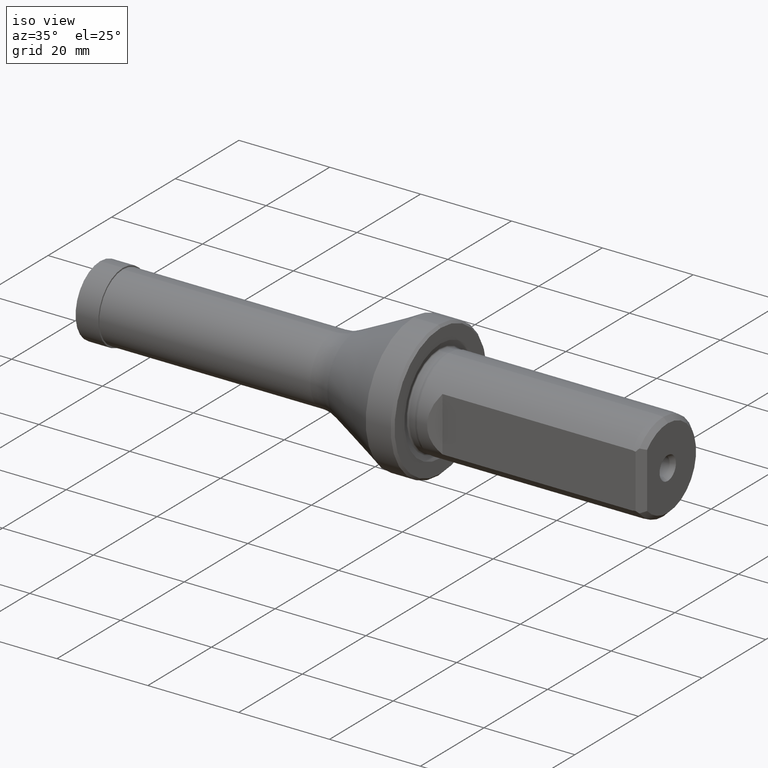
[diagram: clean part render]
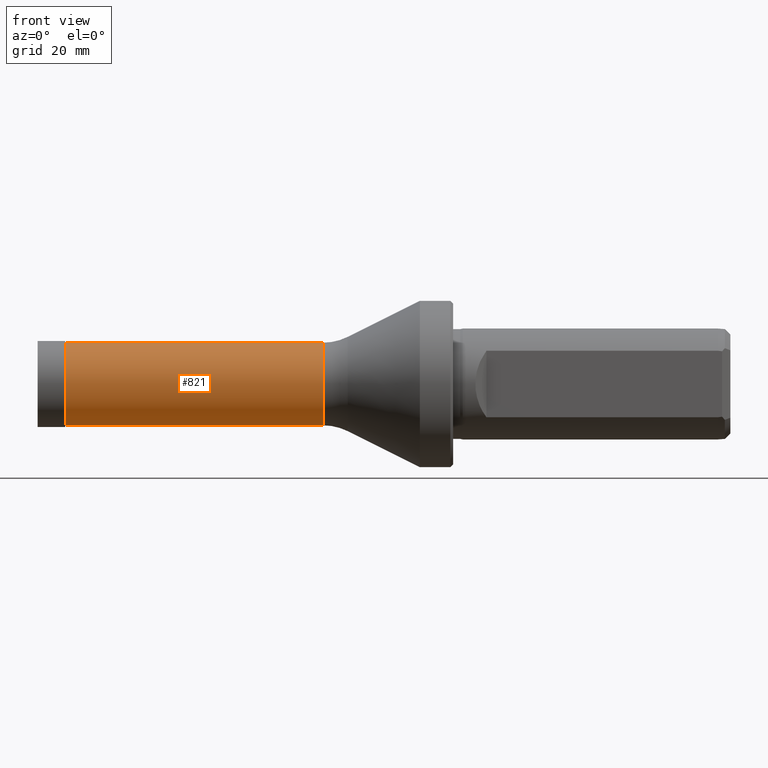
[diagram: tour spotlight — one face highlighted and labeled with its STEP entity id]
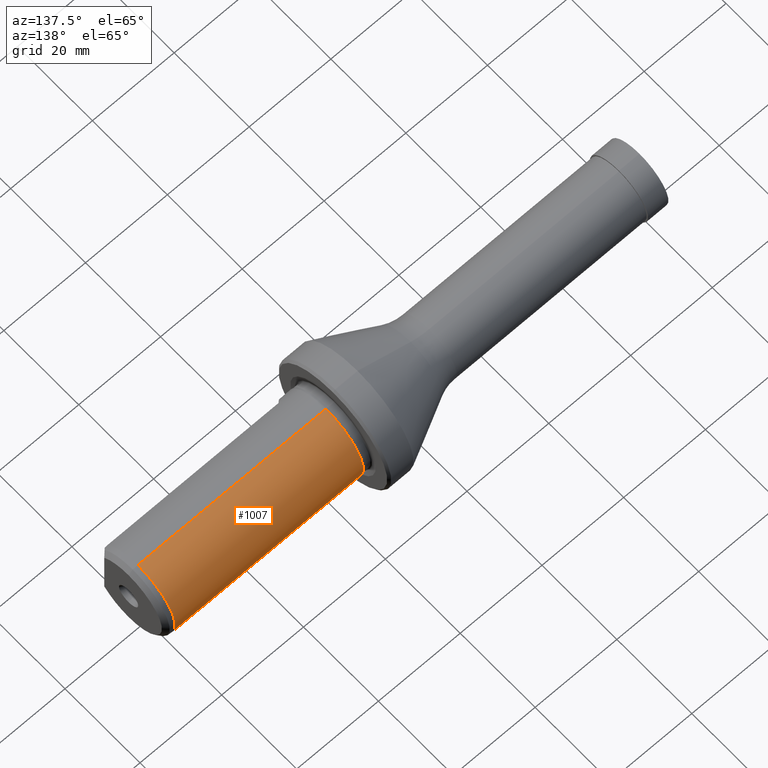
[diagram: tour spotlight — one face highlighted and labeled with its STEP entity id]
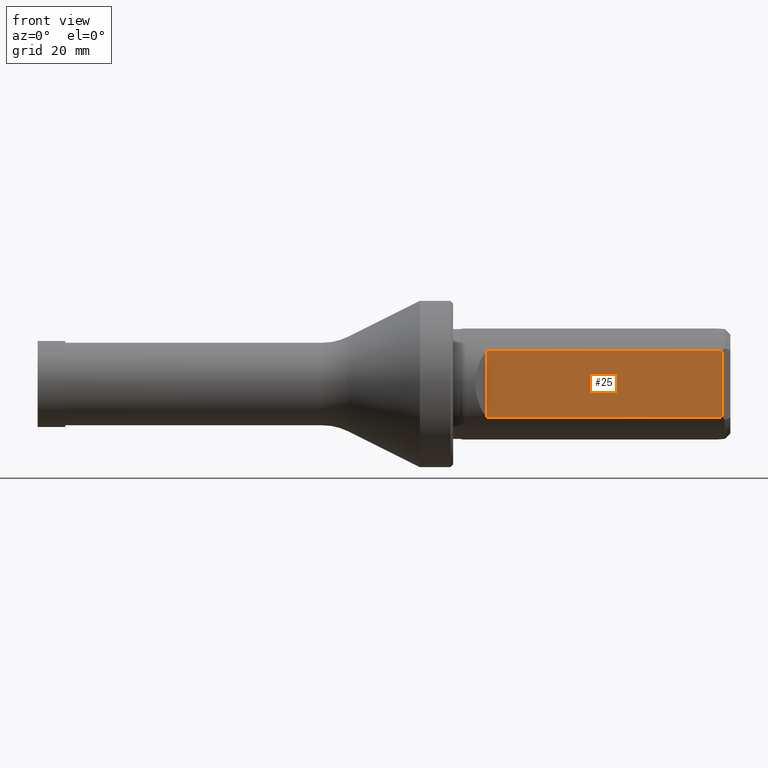
[diagram: tour spotlight — one face highlighted and labeled with its STEP entity id]
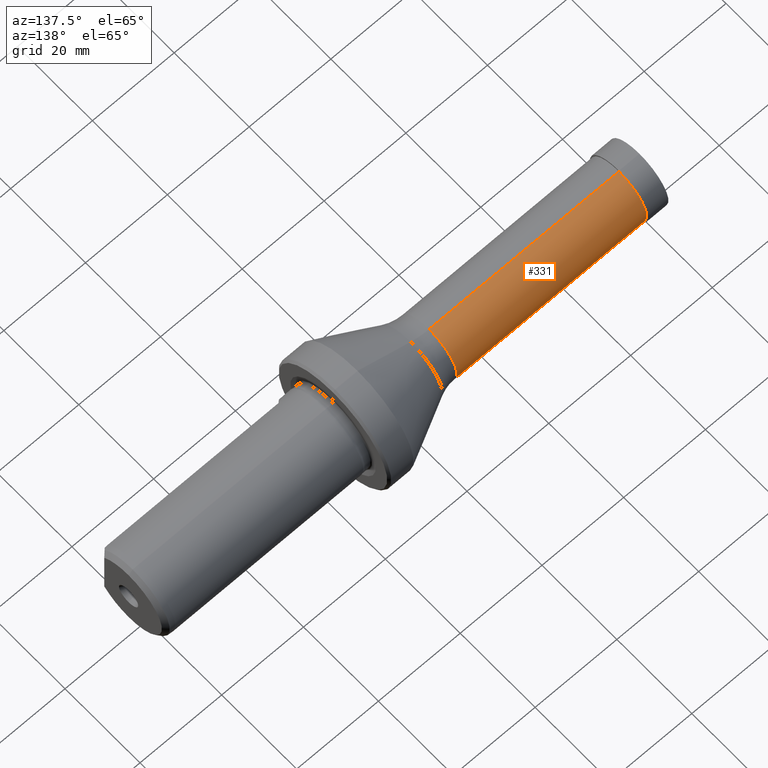
[diagram: tour spotlight — one face highlighted and labeled with its STEP entity id]
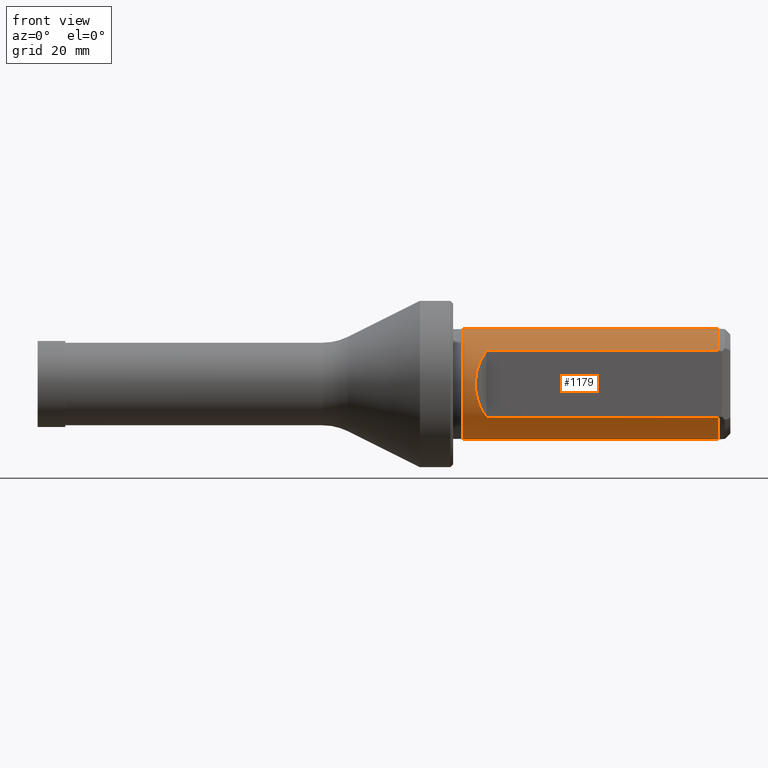
[diagram: tour spotlight — one face highlighted and labeled with its STEP entity id]
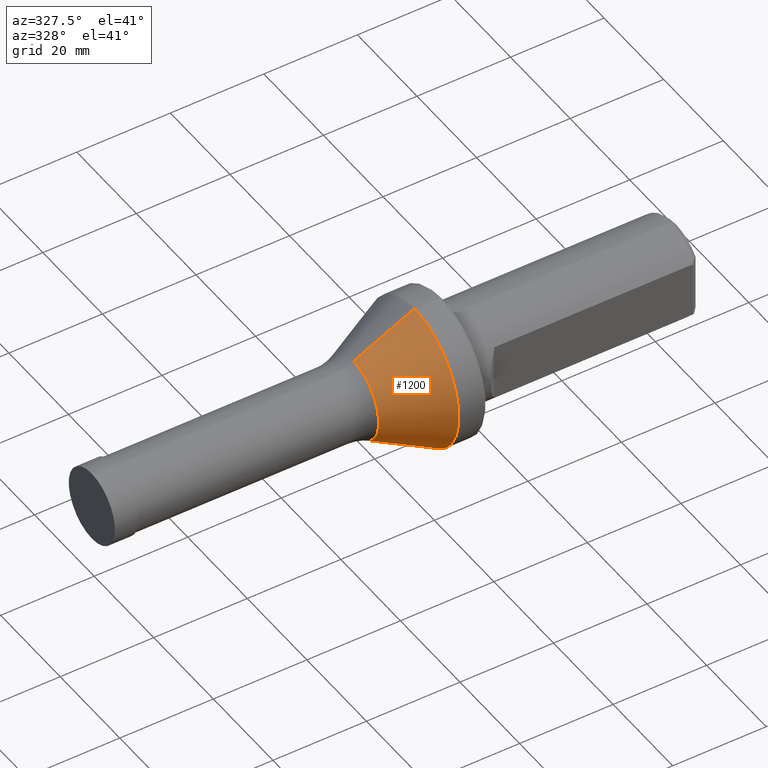
[diagram: tour spotlight — one face highlighted and labeled with its STEP entity id]
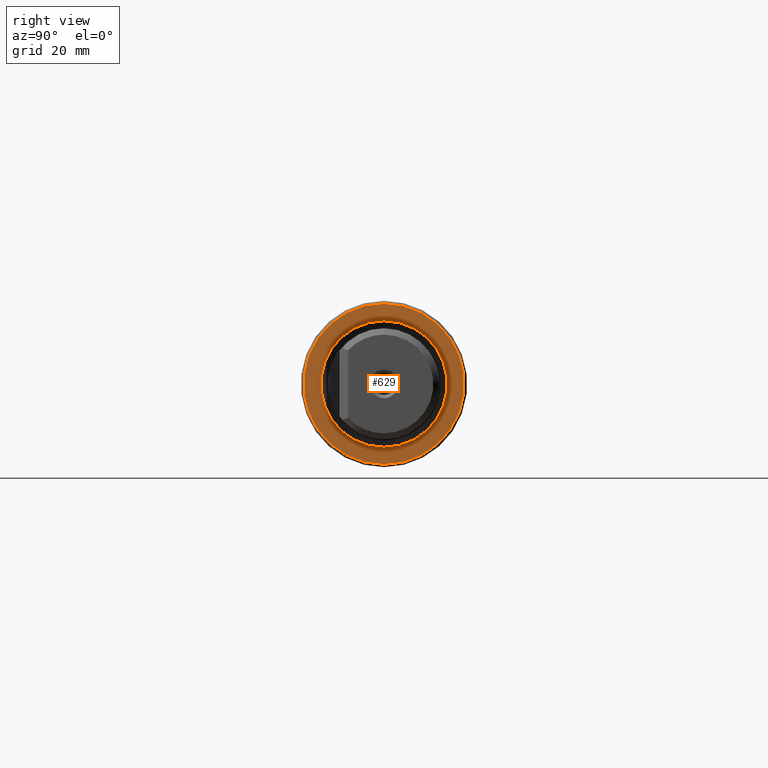
[diagram: tour spotlight — one face highlighted and labeled with its STEP entity id]
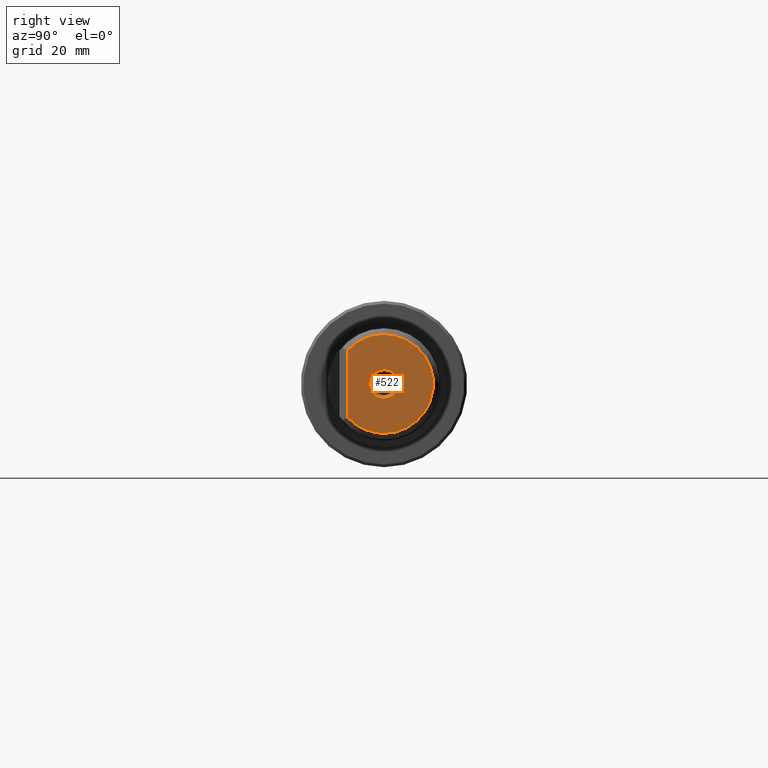
[diagram: tour spotlight — one face highlighted and labeled with its STEP entity id]
A machine part: a face-by-face anatomy tour. The part has 45 B-rep faces; the first image is the clean iso view, then the 8 largest visible faces are spotlighted one at a time (largest first), each with its STEP entity span.

Face 1 — front view, entity #821. In plain terms, the highlighted cylindrical surface (partial cylindrical patch) has radius 7.45 mm, axis along (-1, -0, -0).
Definition (entity closure, byte-faithful):
#3 = LINE ( 'NONE', #487, #10 ) ;
#10 = VECTOR ( 'NONE', #1047, 1000.000000000000000 ) ;
#26 = VERTEX_POINT ( 'NONE', #283 ) ;
#69 = CARTESIAN_POINT ( 'NONE',  ( 50.96900000000000100, 0.0000000000000000000, 0.0000000000000000000 ) ) ;
#119 = CARTESIAN_POINT ( 'NONE',  ( 0.0000000000000000000, 0.0000000000000000000, 0.0000000000000000000 ) ) ;
#147 = VERTEX_POINT ( 'NONE', #210 ) ;
#162 = DIRECTION ( 'NONE',  ( 0.0000000000000000000, 0.0000000000000000000, 1.000000000000000000 ) ) ;
#208 = AXIS2_PLACEMENT_3D ( 'NONE', #119, #484, #673 ) ;
#210 = CARTESIAN_POINT ( 'NONE',  ( 4.500000000000000000, 0.0000000000000000000, 7.450000000000000200 ) ) ;
#262 = VERTEX_POINT ( 'NONE', #499 ) ;
#274 = EDGE_LOOP ( 'NONE', ( #276, #825, #582, #443 ) ) ;
#276 = ORIENTED_EDGE ( 'NONE', *, *, #877, .F. ) ;
#283 = CARTESIAN_POINT ( 'NONE',  ( 50.96900000000000100, 0.0000000000000000000, 7.450000000000000200 ) ) ;
#351 = LINE ( 'NONE', #1051, #790 ) ;
#360 = AXIS2_PLACEMENT_3D ( 'NONE', #69, #721, #162 ) ;
#398 = CARTESIAN_POINT ( 'NONE',  ( 50.96900000000000100, 9.123618653647781200E-016, -7.450000000000000200 ) ) ;
#443 = ORIENTED_EDGE ( 'NONE', *, *, #694, .F. ) ;
#484 = DIRECTION ( 'NONE',  ( -1.000000000000000000, -0.0000000000000000000, -0.0000000000000000000 ) ) ;
#487 = CARTESIAN_POINT ( 'NONE',  ( 0.0000000000000000000, 0.0000000000000000000, 7.450000000000000200 ) ) ;
#493 = EDGE_CURVE ( 'NONE', #1136, #26, #1068, .T. ) ;
#499 = CARTESIAN_POINT ( 'NONE',  ( 4.500000000000000000, 9.123618653647781200E-016, -7.450000000000000200 ) ) ;
#538 = AXIS2_PLACEMENT_3D ( 'NONE', #682, #778, #867 ) ;
#582 = ORIENTED_EDGE ( 'NONE', *, *, #757, .T. ) ;
#673 = DIRECTION ( 'NONE',  ( 0.0000000000000000000, 0.0000000000000000000, 1.000000000000000000 ) ) ;
#682 = CARTESIAN_POINT ( 'NONE',  ( 4.500000000000000000, 0.0000000000000000000, 0.0000000000000000000 ) ) ;
#694 = EDGE_CURVE ( 'NONE', #262, #147, #968, .T. ) ;
#721 = DIRECTION ( 'NONE',  ( -1.000000000000000000, -0.0000000000000000000, -0.0000000000000000000 ) ) ;
#757 = EDGE_CURVE ( 'NONE', #26, #147, #3, .T. ) ;
#778 = DIRECTION ( 'NONE',  ( -1.000000000000000000, 0.0000000000000000000, 0.0000000000000000000 ) ) ;
#790 = VECTOR ( 'NONE', #1044, 1000.000000000000000 ) ;
#792 = CYLINDRICAL_SURFACE ( 'NONE', #208, 7.450000000000000200 ) ;
#821 = ADVANCED_FACE ( 'NONE', ( #906 ), #792, .T. ) ;
#825 = ORIENTED_EDGE ( 'NONE', *, *, #493, .T. ) ;
#867 = DIRECTION ( 'NONE',  ( 0.0000000000000000000, 0.0000000000000000000, 1.000000000000000000 ) ) ;
#877 = EDGE_CURVE ( 'NONE', #1136, #262, #351, .T. ) ;
#906 = FACE_OUTER_BOUND ( 'NONE', #274, .T. ) ;
#968 = CIRCLE ( 'NONE', #538, 7.450000000000000200 ) ;
#1044 = DIRECTION ( 'NONE',  ( -1.000000000000000000, -0.0000000000000000000, -0.0000000000000000000 ) ) ;
#1047 = DIRECTION ( 'NONE',  ( -1.000000000000000000, -0.0000000000000000000, -0.0000000000000000000 ) ) ;
#1051 = CARTESIAN_POINT ( 'NONE',  ( 0.0000000000000000000, 9.123618653647781200E-016, -7.450000000000000200 ) ) ;
#1068 = CIRCLE ( 'NONE', #360, 7.450000000000000200 ) ;
#1136 = VERTEX_POINT ( 'NONE', #398 ) ;

Face 2 — auxiliary view, entity #1007. In plain terms, the highlighted cylindrical surface (partial cylindrical patch) has radius 10 mm, axis along (-1, -0, -0).
Definition (entity closure, byte-faithful):
#17 = CARTESIAN_POINT ( 'NONE',  ( -0.5000000000000005600, 0.0000000000000000000, 10.00000000000000000 ) ) ;
#24 = CARTESIAN_POINT ( 'NONE',  ( -0.5000000000000005600, 1.224646799147353300E-015, -10.00000000000000000 ) ) ;
#54 = CARTESIAN_POINT ( 'NONE',  ( 122.2000000000001700, 0.0000000000000000000, 0.0000000000000000000 ) ) ;
#78 = EDGE_LOOP ( 'NONE', ( #914, #105, #206, #644 ) ) ;
#83 = DIRECTION ( 'NONE',  ( 1.000000000000000000, -0.0000000000000000000, -0.0000000000000000000 ) ) ;
#105 = ORIENTED_EDGE ( 'NONE', *, *, #799, .T. ) ;
#153 = DIRECTION ( 'NONE',  ( 0.0000000000000000000, 0.0000000000000000000, 1.000000000000000000 ) ) ;
#160 = CYLINDRICAL_SURFACE ( 'NONE', #1228, 10.00000000000000000 ) ;
#206 = ORIENTED_EDGE ( 'NONE', *, *, #733, .T. ) ;
#273 = CARTESIAN_POINT ( 'NONE',  ( 76.17953698905211000, 1.224646799147353500E-015, 10.00000000000000000 ) ) ;
#314 = DIRECTION ( 'NONE',  ( 0.0000000000000000000, 0.0000000000000000000, -1.000000000000000000 ) ) ;
#334 = EDGE_CURVE ( 'NONE', #919, #776, #1170, .T. ) ;
#382 = DIRECTION ( 'NONE',  ( -1.000000000000000000, -0.0000000000000000000, -0.0000000000000000000 ) ) ;
#462 = VERTEX_POINT ( 'NONE', #851 ) ;
#510 = VECTOR ( 'NONE', #382, 1000.000000000000000 ) ;
#575 = DIRECTION ( 'NONE',  ( -1.000000000000000000, -0.0000000000000000000, -0.0000000000000000000 ) ) ;
#644 = ORIENTED_EDGE ( 'NONE', *, *, #850, .F. ) ;
#687 = CARTESIAN_POINT ( 'NONE',  ( 76.17953698905211000, 0.0000000000000000000, 0.0000000000000000000 ) ) ;
#705 = DIRECTION ( 'NONE',  ( -1.000000000000000000, -0.0000000000000000000, -0.0000000000000000000 ) ) ;
#733 = EDGE_CURVE ( 'NONE', #462, #971, #1199, .T. ) ;
#734 = LINE ( 'NONE', #24, #1098 ) ;
#776 = VERTEX_POINT ( 'NONE', #910 ) ;
#799 = EDGE_CURVE ( 'NONE', #776, #462, #734, .T. ) ;
#850 = EDGE_CURVE ( 'NONE', #919, #971, #1183, .T. ) ;
#851 = CARTESIAN_POINT ( 'NONE',  ( 76.17953698905211000, 0.0000000000000000000, -10.00000000000000000 ) ) ;
#854 = AXIS2_PLACEMENT_3D ( 'NONE', #687, #83, #314 ) ;
#884 = AXIS2_PLACEMENT_3D ( 'NONE', #54, #705, #153 ) ;
#910 = CARTESIAN_POINT ( 'NONE',  ( 122.2000000000001700, 1.224646799147353300E-015, -10.00000000000000000 ) ) ;
#913 = DIRECTION ( 'NONE',  ( -1.000000000000000000, -0.0000000000000000000, -0.0000000000000000000 ) ) ;
#914 = ORIENTED_EDGE ( 'NONE', *, *, #334, .T. ) ;
#919 = VERTEX_POINT ( 'NONE', #1135 ) ;
#971 = VERTEX_POINT ( 'NONE', #273 ) ;
#1007 = ADVANCED_FACE ( 'NONE', ( #1113 ), #160, .T. ) ;
#1013 = CARTESIAN_POINT ( 'NONE',  ( -0.5000000000000005600, 0.0000000000000000000, 0.0000000000000000000 ) ) ;
#1017 = DIRECTION ( 'NONE',  ( 0.0000000000000000000, 0.0000000000000000000, 1.000000000000000000 ) ) ;
#1098 = VECTOR ( 'NONE', #575, 1000.000000000000000 ) ;
#1113 = FACE_OUTER_BOUND ( 'NONE', #78, .T. ) ;
#1135 = CARTESIAN_POINT ( 'NONE',  ( 122.2000000000001700, 0.0000000000000000000, 10.00000000000000000 ) ) ;
#1170 = CIRCLE ( 'NONE', #884, 10.00000000000000000 ) ;
#1183 = LINE ( 'NONE', #17, #510 ) ;
#1199 = CIRCLE ( 'NONE', #854, 10.00000000000000000 ) ;
#1228 = AXIS2_PLACEMENT_3D ( 'NONE', #1013, #913, #1017 ) ;

Face 3 — front view, entity #25. In plain terms, the highlighted planar face has unit normal (0, 1, 0).
Definition (entity closure, byte-faithful):
#5 = EDGE_CURVE ( 'NONE', #172, #319, #145, .T. ) ;
#9 = CARTESIAN_POINT ( 'NONE',  ( 122.9500000000000000, -7.999999999999998200, 5.899457602186859400 ) ) ;
#12 = EDGE_CURVE ( 'NONE', #172, #876, #1063, .T. ) ;
#16 = ORIENTED_EDGE ( 'NONE', *, *, #258, .T. ) ;
#25 = ADVANCED_FACE ( 'NONE', ( #741 ), #838, .F. ) ;
#27 = EDGE_CURVE ( 'NONE', #89, #252, #620, .T. ) ;
#89 = VERTEX_POINT ( 'NONE', #759 ) ;
#99 = LINE ( 'NONE', #1175, #1001 ) ;
#130 = CARTESIAN_POINT ( 'NONE',  ( 122.2000000000001300, -7.999999999999998200, 6.000000000000008900 ) ) ;
#135 = EDGE_CURVE ( 'NONE', #1229, #252, #455, .T. ) ;
#145 = B_SPLINE_CURVE_WITH_KNOTS ( 'NONE', 3,
 ( #1019, #452, #359, #1222 ),
 .UNSPECIFIED., .F., .F.,
 ( 4, 4 ),
 ( 0.01794528020322219700, 0.01870162634605468700 ),
 .UNSPECIFIED. ) ;
#149 = CARTESIAN_POINT ( 'NONE',  ( 122.1999999999806100, -7.999999999999998200, -6.000000000002611200 ) ) ;
#172 = VERTEX_POINT ( 'NONE', #587 ) ;
#177 = VECTOR ( 'NONE', #304, 1000.000000000000000 ) ;
#184 = DIRECTION ( 'NONE',  ( -0.0000000000000000000, -0.0000000000000000000, 1.000000000000000000 ) ) ;
#252 = VERTEX_POINT ( 'NONE', #692 ) ;
#258 = EDGE_CURVE ( 'NONE', #89, #319, #99, .T. ) ;
#275 = CARTESIAN_POINT ( 'NONE',  ( 122.9500000000000000, -7.999999999999998200, -13.99999999999999800 ) ) ;
#278 = ORIENTED_EDGE ( 'NONE', *, *, #27, .F. ) ;
#304 = DIRECTION ( 'NONE',  ( -1.000000000000000000, -0.0000000000000000000, -0.0000000000000000000 ) ) ;
#319 = VERTEX_POINT ( 'NONE', #149 ) ;
#359 = CARTESIAN_POINT ( 'NONE',  ( 122.4500230110917600, -7.999999999999998200, -5.966663598521133600 ) ) ;
#402 = VECTOR ( 'NONE', #1024, 1000.000000000000000 ) ;
#409 = DIRECTION ( 'NONE',  ( 1.000000000000000000, 0.0000000000000000000, 0.0000000000000000000 ) ) ;
#438 = CARTESIAN_POINT ( 'NONE',  ( 122.7000293310093200, -7.999999999999998200, 5.933151661774252800 ) ) ;
#452 = CARTESIAN_POINT ( 'NONE',  ( 122.7000244501772700, -7.999999999999998200, -5.933152319671628500 ) ) ;
#455 = LINE ( 'NONE', #770, #177 ) ;
#460 = CARTESIAN_POINT ( 'NONE',  ( 80.45000000000000300, -7.999999999999989300, -13.99999999999999800 ) ) ;
#534 = CARTESIAN_POINT ( 'NONE',  ( 122.4500258343678500, -7.999999999999998200, 5.966663222084313200 ) ) ;
#555 = DIRECTION ( 'NONE',  ( -1.000000000000000000, 2.040851148208008500E-016, 0.0000000000000000000 ) ) ;
#587 = CARTESIAN_POINT ( 'NONE',  ( 122.9500000000000000, -7.999999999999998200, -5.899457602186861200 ) ) ;
#620 = LINE ( 'NONE', #460, #1072 ) ;
#663 = AXIS2_PLACEMENT_3D ( 'NONE', #746, #1134, #555 ) ;
#675 = B_SPLINE_CURVE_WITH_KNOTS ( 'NONE', 3,
 ( #1120, #534, #438, #1011 ),
 .UNSPECIFIED., .F., .F.,
 ( 4, 4 ),
 ( 0.01829642709403096400, 0.01905308713919414200 ),
 .UNSPECIFIED. ) ;
#692 = CARTESIAN_POINT ( 'NONE',  ( 80.45000000000000300, -7.999999999999989300, 6.000000000000032900 ) ) ;
#741 = FACE_OUTER_BOUND ( 'NONE', #952, .T. ) ;
#746 = CARTESIAN_POINT ( 'NONE',  ( 122.9500000000000000, -7.999999999999998200, -13.99999999999999800 ) ) ;
#759 = CARTESIAN_POINT ( 'NONE',  ( 80.45000000000000300, -7.999999999999989300, -6.000000000000043500 ) ) ;
#770 = CARTESIAN_POINT ( 'NONE',  ( -0.5000000000000022200, -7.999999999999968900, 6.000000000000040000 ) ) ;
#838 = PLANE ( 'NONE',  #663 ) ;
#842 = ORIENTED_EDGE ( 'NONE', *, *, #12, .T. ) ;
#873 = ORIENTED_EDGE ( 'NONE', *, *, #1021, .F. ) ;
#876 = VERTEX_POINT ( 'NONE', #9 ) ;
#952 = EDGE_LOOP ( 'NONE', ( #16, #1080, #842, #873, #1103, #278 ) ) ;
#1001 = VECTOR ( 'NONE', #409, 1000.000000000000000 ) ;
#1011 = CARTESIAN_POINT ( 'NONE',  ( 122.9500000000000000, -7.999999999999998200, 5.899457602186859400 ) ) ;
#1019 = CARTESIAN_POINT ( 'NONE',  ( 122.9500000000000000, -7.999999999999998200, -5.899457602186861200 ) ) ;
#1021 = EDGE_CURVE ( 'NONE', #1229, #876, #675, .T. ) ;
#1024 = DIRECTION ( 'NONE',  ( -0.0000000000000000000, -0.0000000000000000000, 1.000000000000000000 ) ) ;
#1063 = LINE ( 'NONE', #275, #402 ) ;
#1072 = VECTOR ( 'NONE', #184, 1000.000000000000000 ) ;
#1080 = ORIENTED_EDGE ( 'NONE', *, *, #5, .F. ) ;
#1103 = ORIENTED_EDGE ( 'NONE', *, *, #135, .T. ) ;
#1120 = CARTESIAN_POINT ( 'NONE',  ( 122.2000000000001300, -7.999999999999998200, 6.000000000000008900 ) ) ;
#1134 = DIRECTION ( 'NONE',  ( 2.040851148208008500E-016, 1.000000000000000000, 0.0000000000000000000 ) ) ;
#1175 = CARTESIAN_POINT ( 'NONE',  ( -0.5000000000000022200, -7.999999999999968900, -6.000000000000040000 ) ) ;
#1222 = CARTESIAN_POINT ( 'NONE',  ( 122.1999999999806100, -7.999999999999998200, -6.000000000002611200 ) ) ;
#1229 = VERTEX_POINT ( 'NONE', #130 ) ;

Face 4 — auxiliary view, entity #331. In plain terms, the highlighted cylindrical surface (partial cylindrical patch) has radius 7.45 mm, axis along (-1, -0, -0).
Definition (entity closure, byte-faithful):
#3 = LINE ( 'NONE', #487, #10 ) ;
#10 = VECTOR ( 'NONE', #1047, 1000.000000000000000 ) ;
#26 = VERTEX_POINT ( 'NONE', #283 ) ;
#116 = DIRECTION ( 'NONE',  ( 0.0000000000000000000, 0.0000000000000000000, 1.000000000000000000 ) ) ;
#146 = CARTESIAN_POINT ( 'NONE',  ( 0.0000000000000000000, 0.0000000000000000000, 0.0000000000000000000 ) ) ;
#147 = VERTEX_POINT ( 'NONE', #210 ) ;
#157 = AXIS2_PLACEMENT_3D ( 'NONE', #668, #764, #116 ) ;
#176 = DIRECTION ( 'NONE',  ( -1.000000000000000000, -0.0000000000000000000, -0.0000000000000000000 ) ) ;
#210 = CARTESIAN_POINT ( 'NONE',  ( 4.500000000000000000, 0.0000000000000000000, 7.450000000000000200 ) ) ;
#239 = CYLINDRICAL_SURFACE ( 'NONE', #954, 7.450000000000000200 ) ;
#262 = VERTEX_POINT ( 'NONE', #499 ) ;
#279 = DIRECTION ( 'NONE',  ( 0.0000000000000000000, 0.0000000000000000000, 1.000000000000000000 ) ) ;
#283 = CARTESIAN_POINT ( 'NONE',  ( 50.96900000000000100, 0.0000000000000000000, 7.450000000000000200 ) ) ;
#331 = ADVANCED_FACE ( 'NONE', ( #512 ), #239, .T. ) ;
#338 = EDGE_LOOP ( 'NONE', ( #1096, #743, #586, #386 ) ) ;
#351 = LINE ( 'NONE', #1051, #790 ) ;
#377 = CIRCLE ( 'NONE', #157, 7.450000000000000200 ) ;
#386 = ORIENTED_EDGE ( 'NONE', *, *, #757, .F. ) ;
#398 = CARTESIAN_POINT ( 'NONE',  ( 50.96900000000000100, 9.123618653647781200E-016, -7.450000000000000200 ) ) ;
#425 = DIRECTION ( 'NONE',  ( -1.000000000000000000, -0.0000000000000000000, -0.0000000000000000000 ) ) ;
#487 = CARTESIAN_POINT ( 'NONE',  ( 0.0000000000000000000, 0.0000000000000000000, 7.450000000000000200 ) ) ;
#499 = CARTESIAN_POINT ( 'NONE',  ( 4.500000000000000000, 9.123618653647781200E-016, -7.450000000000000200 ) ) ;
#512 = FACE_OUTER_BOUND ( 'NONE', #338, .T. ) ;
#586 = ORIENTED_EDGE ( 'NONE', *, *, #823, .F. ) ;
#650 = AXIS2_PLACEMENT_3D ( 'NONE', #930, #176, #279 ) ;
#668 = CARTESIAN_POINT ( 'NONE',  ( 4.500000000000000000, 0.0000000000000000000, 0.0000000000000000000 ) ) ;
#743 = ORIENTED_EDGE ( 'NONE', *, *, #877, .T. ) ;
#757 = EDGE_CURVE ( 'NONE', #26, #147, #3, .T. ) ;
#764 = DIRECTION ( 'NONE',  ( -1.000000000000000000, 0.0000000000000000000, 0.0000000000000000000 ) ) ;
#790 = VECTOR ( 'NONE', #1044, 1000.000000000000000 ) ;
#823 = EDGE_CURVE ( 'NONE', #147, #262, #377, .T. ) ;
#877 = EDGE_CURVE ( 'NONE', #1136, #262, #351, .T. ) ;
#880 = DIRECTION ( 'NONE',  ( 0.0000000000000000000, 0.0000000000000000000, 1.000000000000000000 ) ) ;
#930 = CARTESIAN_POINT ( 'NONE',  ( 50.96900000000000100, 0.0000000000000000000, 0.0000000000000000000 ) ) ;
#944 = EDGE_CURVE ( 'NONE', #26, #1136, #1150, .T. ) ;
#954 = AXIS2_PLACEMENT_3D ( 'NONE', #146, #425, #880 ) ;
#1044 = DIRECTION ( 'NONE',  ( -1.000000000000000000, -0.0000000000000000000, -0.0000000000000000000 ) ) ;
#1047 = DIRECTION ( 'NONE',  ( -1.000000000000000000, -0.0000000000000000000, -0.0000000000000000000 ) ) ;
#1051 = CARTESIAN_POINT ( 'NONE',  ( 0.0000000000000000000, 9.123618653647781200E-016, -7.450000000000000200 ) ) ;
#1096 = ORIENTED_EDGE ( 'NONE', *, *, #944, .T. ) ;
#1136 = VERTEX_POINT ( 'NONE', #398 ) ;
#1150 = CIRCLE ( 'NONE', #650, 7.450000000000000200 ) ;

Face 5 — front view, entity #1179. In plain terms, the highlighted cylindrical surface (partial cylindrical patch) has radius 10 mm, axis along (-1, -0, -0).
Definition (entity closure, byte-faithful):
#17 = CARTESIAN_POINT ( 'NONE',  ( -0.5000000000000005600, 0.0000000000000000000, 10.00000000000000000 ) ) ;
#21 = CARTESIAN_POINT ( 'NONE',  ( 76.17953698905211000, 0.0000000000000000000, 0.0000000000000000000 ) ) ;
#23 = AXIS2_PLACEMENT_3D ( 'NONE', #21, #570, #1147 ) ;
#24 = CARTESIAN_POINT ( 'NONE',  ( -0.5000000000000005600, 1.224646799147353300E-015, -10.00000000000000000 ) ) ;
#38 = CARTESIAN_POINT ( 'NONE',  ( -0.5000000000000005600, 0.0000000000000000000, 0.0000000000000000000 ) ) ;
#39 = CARTESIAN_POINT ( 'NONE',  ( 77.68076923076920100, -10.76923076923077700, -2.307692307692327500 ) ) ;
#58 = ORIENTED_EDGE ( 'NONE', *, *, #188, .F. ) ;
#89 = VERTEX_POINT ( 'NONE', #759 ) ;
#99 = LINE ( 'NONE', #1175, #1001 ) ;
#130 = CARTESIAN_POINT ( 'NONE',  ( 122.2000000000001300, -7.999999999999998200, 6.000000000000008900 ) ) ;
#133 = CARTESIAN_POINT ( 'NONE',  ( 80.45000000000000300, -7.999999999999989300, -6.000000000000043500 ) ) ;
#135 = EDGE_CURVE ( 'NONE', #1229, #252, #455, .T. ) ;
#149 = CARTESIAN_POINT ( 'NONE',  ( 122.1999999999806100, -7.999999999999998200, -6.000000000002611200 ) ) ;
#177 = VECTOR ( 'NONE', #304, 1000.000000000000000 ) ;
#188 = EDGE_CURVE ( 'NONE', #252, #89, #1148, .T. ) ;
#215 = ORIENTED_EDGE ( 'NONE', *, *, #850, .T. ) ;
#219 = ORIENTED_EDGE ( 'NONE', *, *, #815, .T. ) ;
#225 = ORIENTED_EDGE ( 'NONE', *, *, #316, .T. ) ;
#234 = DIRECTION ( 'NONE',  ( -1.000000000000000000, -0.0000000000000000000, -0.0000000000000000000 ) ) ;
#252 = VERTEX_POINT ( 'NONE', #692 ) ;
#258 = EDGE_CURVE ( 'NONE', #89, #319, #99, .T. ) ;
#273 = CARTESIAN_POINT ( 'NONE',  ( 76.17953698905211000, 1.224646799147353500E-015, 10.00000000000000000 ) ) ;
#282 = DIRECTION ( 'NONE',  ( 0.0000000000000000000, 0.0000000000000000000, 1.000000000000000000 ) ) ;
#295 = ORIENTED_EDGE ( 'NONE', *, *, #686, .T. ) ;
#304 = DIRECTION ( 'NONE',  ( -1.000000000000000000, -0.0000000000000000000, -0.0000000000000000000 ) ) ;
#316 = EDGE_CURVE ( 'NONE', #776, #319, #890, .T. ) ;
#319 = VERTEX_POINT ( 'NONE', #149 ) ;
#321 = ORIENTED_EDGE ( 'NONE', *, *, #135, .F. ) ;
#347 = ORIENTED_EDGE ( 'NONE', *, *, #799, .F. ) ;
#363 = ORIENTED_EDGE ( 'NONE', *, *, #258, .F. ) ;
#382 = DIRECTION ( 'NONE',  ( -1.000000000000000000, -0.0000000000000000000, -0.0000000000000000000 ) ) ;
#409 = DIRECTION ( 'NONE',  ( 1.000000000000000000, 0.0000000000000000000, 0.0000000000000000000 ) ) ;
#455 = LINE ( 'NONE', #770, #177 ) ;
#462 = VERTEX_POINT ( 'NONE', #851 ) ;
#481 = AXIS2_PLACEMENT_3D ( 'NONE', #502, #784, #282 ) ;
#502 = CARTESIAN_POINT ( 'NONE',  ( 122.2000000000001700, 0.0000000000000000000, 0.0000000000000000000 ) ) ;
#510 = VECTOR ( 'NONE', #382, 1000.000000000000000 ) ;
#564 = FACE_OUTER_BOUND ( 'NONE', #584, .T. ) ;
#570 = DIRECTION ( 'NONE',  ( 1.000000000000000000, -0.0000000000000000000, -0.0000000000000000000 ) ) ;
#575 = DIRECTION ( 'NONE',  ( -1.000000000000000000, -0.0000000000000000000, -0.0000000000000000000 ) ) ;
#584 = EDGE_LOOP ( 'NONE', ( #347, #225, #363, #58, #321, #295, #215, #219 ) ) ;
#647 = DIRECTION ( 'NONE',  ( 0.0000000000000000000, 0.0000000000000000000, 1.000000000000000000 ) ) ;
#684 = CARTESIAN_POINT ( 'NONE',  ( 77.68076923076920100, -10.76923076923077700, 2.307692307692321700 ) ) ;
#686 = EDGE_CURVE ( 'NONE', #1229, #919, #856, .T. ) ;
#689 = AXIS2_PLACEMENT_3D ( 'NONE', #38, #917, #647 ) ;
#692 = CARTESIAN_POINT ( 'NONE',  ( 80.45000000000000300, -7.999999999999989300, 6.000000000000032900 ) ) ;
#698 = CARTESIAN_POINT ( 'NONE',  ( 122.2000000000001700, 0.0000000000000000000, 0.0000000000000000000 ) ) ;
#734 = LINE ( 'NONE', #24, #1098 ) ;
#759 = CARTESIAN_POINT ( 'NONE',  ( 80.45000000000000300, -7.999999999999989300, -6.000000000000043500 ) ) ;
#766 = AXIS2_PLACEMENT_3D ( 'NONE', #698, #234, #882 ) ;
#770 = CARTESIAN_POINT ( 'NONE',  ( -0.5000000000000022200, -7.999999999999968900, 6.000000000000040000 ) ) ;
#776 = VERTEX_POINT ( 'NONE', #910 ) ;
#784 = DIRECTION ( 'NONE',  ( -1.000000000000000000, -0.0000000000000000000, -0.0000000000000000000 ) ) ;
#799 = EDGE_CURVE ( 'NONE', #776, #462, #734, .T. ) ;
#815 = EDGE_CURVE ( 'NONE', #971, #462, #1182, .T. ) ;
#850 = EDGE_CURVE ( 'NONE', #919, #971, #1183, .T. ) ;
#851 = CARTESIAN_POINT ( 'NONE',  ( 76.17953698905211000, 0.0000000000000000000, -10.00000000000000000 ) ) ;
#856 = CIRCLE ( 'NONE', #481, 10.00000000000000000 ) ;
#882 = DIRECTION ( 'NONE',  ( 0.0000000000000000000, 0.0000000000000000000, 1.000000000000000000 ) ) ;
#890 = CIRCLE ( 'NONE', #766, 10.00000000000000000 ) ;
#910 = CARTESIAN_POINT ( 'NONE',  ( 122.2000000000001700, 1.224646799147353300E-015, -10.00000000000000000 ) ) ;
#917 = DIRECTION ( 'NONE',  ( -1.000000000000000000, -0.0000000000000000000, -0.0000000000000000000 ) ) ;
#919 = VERTEX_POINT ( 'NONE', #1135 ) ;
#935 = CYLINDRICAL_SURFACE ( 'NONE', #689, 10.00000000000000000 ) ;
#971 = VERTEX_POINT ( 'NONE', #273 ) ;
#1001 = VECTOR ( 'NONE', #409, 1000.000000000000000 ) ;
#1067 = CARTESIAN_POINT ( 'NONE',  ( 80.45000000000000300, -7.999999999999989300, 6.000000000000032900 ) ) ;
#1098 = VECTOR ( 'NONE', #575, 1000.000000000000000 ) ;
#1135 = CARTESIAN_POINT ( 'NONE',  ( 122.2000000000001700, 0.0000000000000000000, 10.00000000000000000 ) ) ;
#1147 = DIRECTION ( 'NONE',  ( 0.0000000000000000000, 0.0000000000000000000, -1.000000000000000000 ) ) ;
#1148 =( BOUNDED_CURVE ( )  B_SPLINE_CURVE ( 3, ( #1067, #684, #39, #133 ),
 .UNSPECIFIED., .F., .F. ) 
 B_SPLINE_CURVE_WITH_KNOTS ( ( 4, 4 ),
 ( 5.639684198386298400, 6.926686415972874900 ),
 .UNSPECIFIED. ) 
 CURVE ( )  GEOMETRIC_REPRESENTATION_ITEM ( )  RATIONAL_B_SPLINE_CURVE ( ( 1.000000000000000000, 0.8666666666666650300, 0.8666666666666650300, 1.000000000000000000 ) ) 
 REPRESENTATION_ITEM ( '' )  );
#1175 = CARTESIAN_POINT ( 'NONE',  ( -0.5000000000000022200, -7.999999999999968900, -6.000000000000040000 ) ) ;
#1179 = ADVANCED_FACE ( 'NONE', ( #564 ), #935, .T. ) ;
#1182 = CIRCLE ( 'NONE', #23, 10.00000000000000000 ) ;
#1183 = LINE ( 'NONE', #17, #510 ) ;
#1229 = VERTEX_POINT ( 'NONE', #130 ) ;

Face 6 — auxiliary view, entity #1200. In plain terms, the highlighted conical surface has half-angle 26.529 deg.
Definition (entity closure, byte-faithful):
#45 = CARTESIAN_POINT ( 'NONE',  ( 68.45000000000000300, 1.836970198721029600E-015, 14.99999999999999800 ) ) ;
#47 = VERTEX_POINT ( 'NONE', #472 ) ;
#53 = CARTESIAN_POINT ( 'NONE',  ( 68.45000000000000300, 0.0000000000000000000, 0.0000000000000000000 ) ) ;
#67 = CARTESIAN_POINT ( 'NONE',  ( 68.45000000000000300, 0.0000000000000000000, -14.99999999999999800 ) ) ;
#95 = VECTOR ( 'NONE', #623, 1000.000000000000200 ) ;
#128 = EDGE_CURVE ( 'NONE', #47, #634, #723, .T. ) ;
#193 = DIRECTION ( 'NONE',  ( 0.0000000000000000000, 0.0000000000000000000, -1.000000000000000000 ) ) ;
#264 = ORIENTED_EDGE ( 'NONE', *, *, #669, .F. ) ;
#280 = ORIENTED_EDGE ( 'NONE', *, *, #128, .F. ) ;
#419 = AXIS2_PLACEMENT_3D ( 'NONE', #588, #1161, #492 ) ;
#427 = AXIS2_PLACEMENT_3D ( 'NONE', #53, #704, #1090 ) ;
#472 = CARTESIAN_POINT ( 'NONE',  ( 55.43554605212926100, 0.0000000000000000000, 8.502935321335346700 ) ) ;
#471 = VECTOR ( 'NONE', #959, 1000.000000000000200 ) ;
#492 = DIRECTION ( 'NONE',  ( 0.0000000000000000000, 0.0000000000000000000, 1.000000000000000000 ) ) ;
#500 = EDGE_CURVE ( 'NONE', #662, #634, #656, .T. ) ;
#561 = DIRECTION ( 'NONE',  ( 1.000000000000000000, 0.0000000000000000000, 0.0000000000000000000 ) ) ;
#588 = CARTESIAN_POINT ( 'NONE',  ( 55.43554605212926100, 0.0000000000000000000, 0.0000000000000000000 ) ) ;
#623 = DIRECTION ( 'NONE',  ( 0.8947064678664644600, 0.0000000000000000000, -0.4466546052129263800 ) ) ;
#634 = VERTEX_POINT ( 'NONE', #45 ) ;
#656 = CIRCLE ( 'NONE', #427, 14.99999999999999800 ) ;
#662 = VERTEX_POINT ( 'NONE', #691 ) ;
#664 = CARTESIAN_POINT ( 'NONE',  ( 68.45000000000000300, 0.0000000000000000000, 0.0000000000000000000 ) ) ;
#669 = EDGE_CURVE ( 'NONE', #1180, #47, #951, .T. ) ;
#691 = CARTESIAN_POINT ( 'NONE',  ( 68.45000000000000300, 0.0000000000000000000, -14.99999999999999800 ) ) ;
#700 = LINE ( 'NONE', #67, #95 ) ;
#704 = DIRECTION ( 'NONE',  ( -1.000000000000000000, -0.0000000000000000000, -0.0000000000000000000 ) ) ;
#723 = LINE ( 'NONE', #1061, #471 ) ;
#753 = AXIS2_PLACEMENT_3D ( 'NONE', #664, #561, #193 ) ;
#820 = ORIENTED_EDGE ( 'NONE', *, *, #500, .T. ) ;
#834 = FACE_OUTER_BOUND ( 'NONE', #888, .T. ) ;
#888 = EDGE_LOOP ( 'NONE', ( #280, #264, #901, #820 ) ) ;
#901 = ORIENTED_EDGE ( 'NONE', *, *, #1105, .T. ) ;
#951 = CIRCLE ( 'NONE', #419, 8.502935321335348500 ) ;
#959 = DIRECTION ( 'NONE',  ( 0.8947064678664644600, 5.469941325984350200E-017, 0.4466546052129263800 ) ) ;
#999 = CONICAL_SURFACE ( 'NONE', #753, 14.99999999999999800, 0.4630227364362859400 ) ;
#1053 = CARTESIAN_POINT ( 'NONE',  ( 55.43554605212926100, 1.041309252463030300E-015, -8.502935321335346700 ) ) ;
#1061 = CARTESIAN_POINT ( 'NONE',  ( 68.45000000000000300, 1.836970198721029600E-015, 14.99999999999999800 ) ) ;
#1090 = DIRECTION ( 'NONE',  ( 0.0000000000000000000, 0.0000000000000000000, 1.000000000000000000 ) ) ;
#1105 = EDGE_CURVE ( 'NONE', #1180, #662, #700, .T. ) ;
#1161 = DIRECTION ( 'NONE',  ( -1.000000000000000000, -0.0000000000000000000, -0.0000000000000000000 ) ) ;
#1180 = VERTEX_POINT ( 'NONE', #1053 ) ;
#1200 = ADVANCED_FACE ( 'NONE', ( #834 ), #999, .T. ) ;

Face 7 — right view, entity #629. In plain terms, the highlighted planar face has unit normal (-1, 0, -0).
Definition (entity closure, byte-faithful):
#93 = VERTEX_POINT ( 'NONE', #768 ) ;
#129 = CIRCLE ( 'NONE', #928, 11.40000000000001100 ) ;
#144 = PLANE ( 'NONE',  #285 ) ;
#158 = DIRECTION ( 'NONE',  ( 1.000000000000000000, 0.0000000000000000000, 0.0000000000000000000 ) ) ;
#169 = ORIENTED_EDGE ( 'NONE', *, *, #560, .F. ) ;
#173 = AXIS2_PLACEMENT_3D ( 'NONE', #341, #897, #245 ) ;
#183 = DIRECTION ( 'NONE',  ( 0.0000000000000000000, 0.0000000000000000000, 1.000000000000000000 ) ) ;
#196 = VERTEX_POINT ( 'NONE', #315 ) ;
#203 = FACE_BOUND ( 'NONE', #931, .T. ) ;
#220 = CIRCLE ( 'NONE', #519, 14.49999999999999600 ) ;
#236 = VERTEX_POINT ( 'NONE', #973 ) ;
#245 = DIRECTION ( 'NONE',  ( 0.0000000000000000000, 0.0000000000000000000, -1.000000000000000000 ) ) ;
#285 = AXIS2_PLACEMENT_3D ( 'NONE', #1079, #317, #875 ) ;
#286 = DIRECTION ( 'NONE',  ( 1.000000000000000000, 0.0000000000000000000, 0.0000000000000000000 ) ) ;
#309 = CIRCLE ( 'NONE', #173, 11.40000000000001100 ) ;
#315 = CARTESIAN_POINT ( 'NONE',  ( 74.45000000000000300, 0.0000000000000000000, 14.49999999999999600 ) ) ;
#317 = DIRECTION ( 'NONE',  ( -1.000000000000000000, 0.0000000000000000000, -0.0000000000000000000 ) ) ;
#318 = DIRECTION ( 'NONE',  ( 0.0000000000000000000, 0.0000000000000000000, -1.000000000000000000 ) ) ;
#340 = FACE_OUTER_BOUND ( 'NONE', #404, .T. ) ;
#341 = CARTESIAN_POINT ( 'NONE',  ( 74.45000000000000300, 0.0000000000000000000, 0.0000000000000000000 ) ) ;
#374 = EDGE_CURVE ( 'NONE', #196, #93, #615, .T. ) ;
#404 = EDGE_LOOP ( 'NONE', ( #595, #1101 ) ) ;
#416 = EDGE_CURVE ( 'NONE', #563, #236, #309, .T. ) ;
#519 = AXIS2_PLACEMENT_3D ( 'NONE', #934, #286, #183 ) ;
#560 = EDGE_CURVE ( 'NONE', #236, #563, #129, .T. ) ;
#563 = VERTEX_POINT ( 'NONE', #974 ) ;
#595 = ORIENTED_EDGE ( 'NONE', *, *, #374, .T. ) ;
#610 = CARTESIAN_POINT ( 'NONE',  ( 74.45000000000000300, 0.0000000000000000000, 0.0000000000000000000 ) ) ;
#615 = CIRCLE ( 'NONE', #1015, 14.49999999999999600 ) ;
#629 = ADVANCED_FACE ( 'NONE', ( #203, #340 ), #144, .F. ) ;
#768 = CARTESIAN_POINT ( 'NONE',  ( 74.45000000000000300, 1.806354028742345800E-015, -14.49999999999999600 ) ) ;
#805 = CARTESIAN_POINT ( 'NONE',  ( 74.45000000000000300, 0.0000000000000000000, 0.0000000000000000000 ) ) ;
#806 = DIRECTION ( 'NONE',  ( 0.0000000000000000000, 0.0000000000000000000, 1.000000000000000000 ) ) ;
#875 = DIRECTION ( 'NONE',  ( -0.0000000000000000000, 0.0000000000000000000, 1.000000000000000000 ) ) ;
#897 = DIRECTION ( 'NONE',  ( 1.000000000000000000, -0.0000000000000000000, -0.0000000000000000000 ) ) ;
#915 = EDGE_CURVE ( 'NONE', #93, #196, #220, .T. ) ;
#928 = AXIS2_PLACEMENT_3D ( 'NONE', #805, #1196, #318 ) ;
#931 = EDGE_LOOP ( 'NONE', ( #169, #1181 ) ) ;
#934 = CARTESIAN_POINT ( 'NONE',  ( 74.45000000000000300, 0.0000000000000000000, 0.0000000000000000000 ) ) ;
#973 = CARTESIAN_POINT ( 'NONE',  ( 74.45000000000000300, 0.0000000000000000000, -11.40000000000001100 ) ) ;
#974 = CARTESIAN_POINT ( 'NONE',  ( 74.45000000000000300, 1.396097351027984000E-015, 11.40000000000001100 ) ) ;
#1015 = AXIS2_PLACEMENT_3D ( 'NONE', #610, #158, #806 ) ;
#1079 = CARTESIAN_POINT ( 'NONE',  ( 74.45000000000000300, 10.10000000000001000, 0.0000000000000000000 ) ) ;
#1101 = ORIENTED_EDGE ( 'NONE', *, *, #915, .T. ) ;
#1181 = ORIENTED_EDGE ( 'NONE', *, *, #416, .F. ) ;
#1196 = DIRECTION ( 'NONE',  ( 1.000000000000000000, -0.0000000000000000000, -0.0000000000000000000 ) ) ;

Face 8 — right view, entity #522. In plain terms, the highlighted planar face has unit normal (-1, 0, -0).
Definition (entity closure, byte-faithful):
#1 = CARTESIAN_POINT ( 'NONE',  ( 124.4500000000000000, 0.0000000000000000000, 0.0000000000000000000 ) ) ;
#11 = AXIS2_PLACEMENT_3D ( 'NONE', #201, #852, #301 ) ;
#61 = EDGE_LOOP ( 'NONE', ( #909, #237 ) ) ;
#76 = DIRECTION ( 'NONE',  ( -1.000000000000000000, -0.0000000000000000000, -0.0000000000000000000 ) ) ;
#85 = EDGE_CURVE ( 'NONE', #1029, #403, #816, .T. ) ;
#100 = CARTESIAN_POINT ( 'NONE',  ( 124.4500000000000000, -6.499999999999993800, -13.99999999999999800 ) ) ;
#103 = DIRECTION ( 'NONE',  ( -1.000000000000000000, -0.0000000000000000000, -0.0000000000000000000 ) ) ;
#178 = EDGE_CURVE ( 'NONE', #403, #836, #800, .T. ) ;
#201 = CARTESIAN_POINT ( 'NONE',  ( 124.4500000000000000, 0.0000000000000000000, 0.0000000000000000000 ) ) ;
#237 = ORIENTED_EDGE ( 'NONE', *, *, #1036, .T. ) ;
#260 = CARTESIAN_POINT ( 'NONE',  ( 124.4500000000000000, 0.0000000000000000000, 0.0000000000000000000 ) ) ;
#272 = AXIS2_PLACEMENT_3D ( 'NONE', #1, #103, #653 ) ;
#284 = ORIENTED_EDGE ( 'NONE', *, *, #900, .F. ) ;
#301 = DIRECTION ( 'NONE',  ( 0.0000000000000000000, 0.0000000000000000000, 1.000000000000000000 ) ) ;
#325 = VECTOR ( 'NONE', #837, 1000.000000000000000 ) ;
#342 = FACE_OUTER_BOUND ( 'NONE', #948, .T. ) ;
#352 = CARTESIAN_POINT ( 'NONE',  ( 124.4500000000000000, -6.499999999999993800, 6.079473661428291800 ) ) ;
#383 = AXIS2_PLACEMENT_3D ( 'NONE', #1071, #495, #1163 ) ;
#403 = VERTEX_POINT ( 'NONE', #616 ) ;
#413 = PLANE ( 'NONE',  #740 ) ;
#448 = VERTEX_POINT ( 'NONE', #713 ) ;
#454 = CARTESIAN_POINT ( 'NONE',  ( 124.4500000000000000, 0.0000000000000000000, -2.577350269189618200 ) ) ;
#495 = DIRECTION ( 'NONE',  ( -1.000000000000000000, -0.0000000000000000000, -0.0000000000000000000 ) ) ;
#498 = ORIENTED_EDGE ( 'NONE', *, *, #969, .F. ) ;
#522 = ADVANCED_FACE ( 'NONE', ( #871, #342 ), #413, .F. ) ;
#531 = ORIENTED_EDGE ( 'NONE', *, *, #85, .F. ) ;
#601 = CARTESIAN_POINT ( 'NONE',  ( 124.4500000000000000, 8.900000000000016300, 0.0000000000000000000 ) ) ;
#616 = CARTESIAN_POINT ( 'NONE',  ( 124.4500000000000000, 0.0000000000000000000, 8.900000000000016300 ) ) ;
#631 = DIRECTION ( 'NONE',  ( 0.0000000000000000000, 0.0000000000000000000, 1.000000000000000000 ) ) ;
#653 = DIRECTION ( 'NONE',  ( 0.0000000000000000000, 0.0000000000000000000, 1.000000000000000000 ) ) ;
#677 = DIRECTION ( 'NONE',  ( -1.000000000000000000, 0.0000000000000000000, -0.0000000000000000000 ) ) ;
#688 = VERTEX_POINT ( 'NONE', #1074 ) ;
#713 = CARTESIAN_POINT ( 'NONE',  ( 124.4500000000000000, -6.499999999999993800, -6.079473661428298000 ) ) ;
#726 = CARTESIAN_POINT ( 'NONE',  ( 124.4500000000000000, 0.0000000000000000000, 0.0000000000000000000 ) ) ;
#740 = AXIS2_PLACEMENT_3D ( 'NONE', #601, #677, #978 ) ;
#800 = CIRCLE ( 'NONE', #383, 8.900000000000016300 ) ;
#816 = CIRCLE ( 'NONE', #11, 8.900000000000016300 ) ;
#836 = VERTEX_POINT ( 'NONE', #1056 ) ;
#837 = DIRECTION ( 'NONE',  ( -0.0000000000000000000, -0.0000000000000000000, 1.000000000000000000 ) ) ;
#852 = DIRECTION ( 'NONE',  ( -1.000000000000000000, -0.0000000000000000000, -0.0000000000000000000 ) ) ;
#871 = FACE_BOUND ( 'NONE', #61, .T. ) ;
#900 = EDGE_CURVE ( 'NONE', #836, #448, #1012, .T. ) ;
#909 = ORIENTED_EDGE ( 'NONE', *, *, #1075, .T. ) ;
#942 = DIRECTION ( 'NONE',  ( -1.000000000000000000, -0.0000000000000000000, -0.0000000000000000000 ) ) ;
#948 = EDGE_LOOP ( 'NONE', ( #531, #498, #284, #1129 ) ) ;
#965 = CIRCLE ( 'NONE', #1159, 2.577350269189618200 ) ;
#969 = EDGE_CURVE ( 'NONE', #448, #1029, #1198, .T. ) ;
#978 = DIRECTION ( 'NONE',  ( -0.0000000000000000000, 0.0000000000000000000, 1.000000000000000000 ) ) ;
#984 = VERTEX_POINT ( 'NONE', #454 ) ;
#1012 = CIRCLE ( 'NONE', #272, 8.900000000000016300 ) ;
#1028 = AXIS2_PLACEMENT_3D ( 'NONE', #260, #942, #1073 ) ;
#1029 = VERTEX_POINT ( 'NONE', #352 ) ;
#1036 = EDGE_CURVE ( 'NONE', #688, #984, #965, .T. ) ;
#1056 = CARTESIAN_POINT ( 'NONE',  ( 124.4500000000000000, 1.151167991198513900E-015, -8.900000000000016300 ) ) ;
#1071 = CARTESIAN_POINT ( 'NONE',  ( 124.4500000000000000, 0.0000000000000000000, 0.0000000000000000000 ) ) ;
#1073 = DIRECTION ( 'NONE',  ( 0.0000000000000000000, 0.0000000000000000000, 1.000000000000000000 ) ) ;
#1074 = CARTESIAN_POINT ( 'NONE',  ( 124.4500000000000000, 3.156343757444634300E-016, 2.577350269189618200 ) ) ;
#1075 = EDGE_CURVE ( 'NONE', #984, #688, #1102, .T. ) ;
#1102 = CIRCLE ( 'NONE', #1028, 2.577350269189618200 ) ;
#1129 = ORIENTED_EDGE ( 'NONE', *, *, #178, .F. ) ;
#1159 = AXIS2_PLACEMENT_3D ( 'NONE', #726, #76, #631 ) ;
#1163 = DIRECTION ( 'NONE',  ( 0.0000000000000000000, 0.0000000000000000000, 1.000000000000000000 ) ) ;
#1198 = LINE ( 'NONE', #100, #325 ) ;